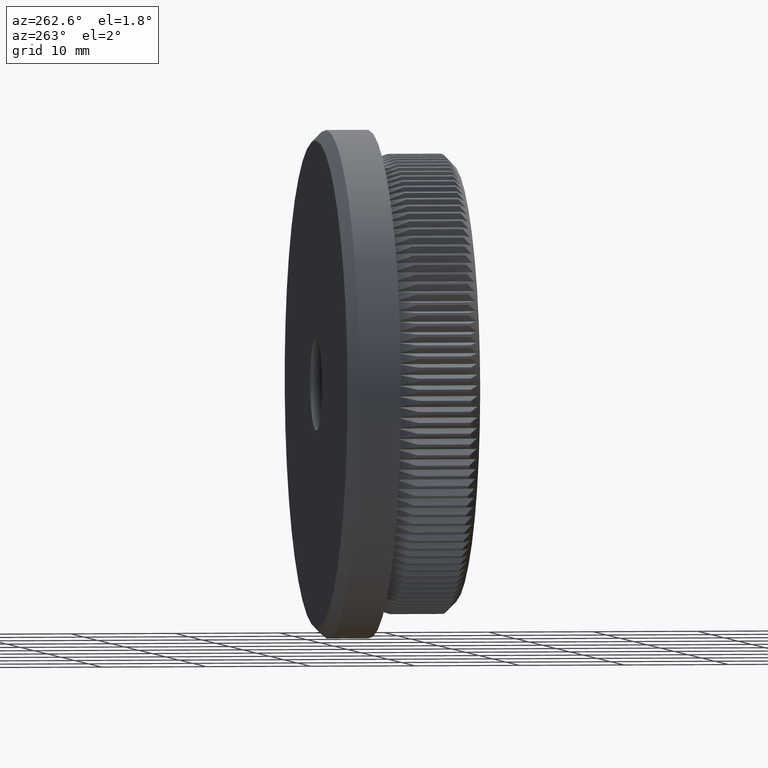
[diagram: clean part render]
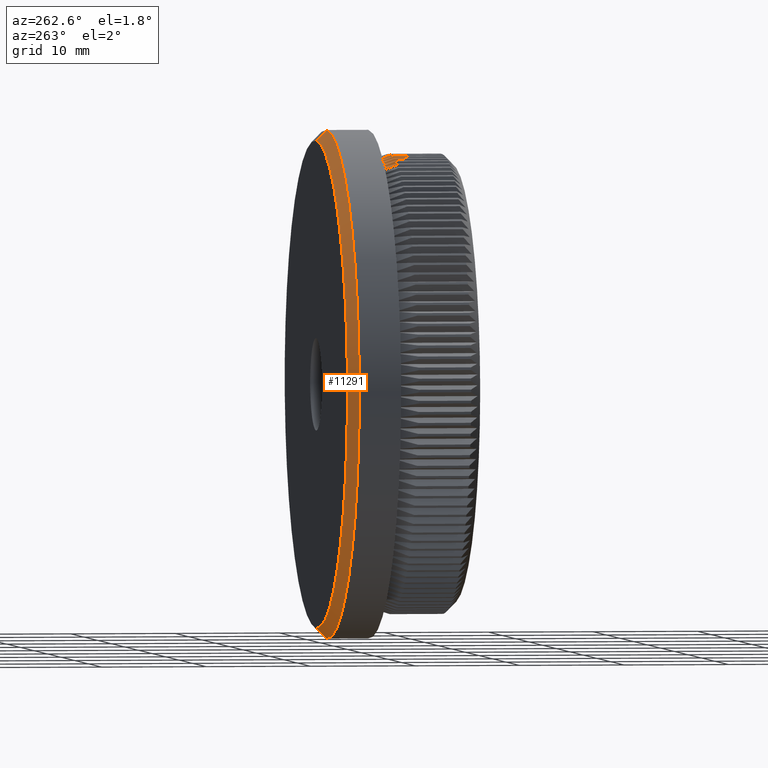
[diagram: same view with one face highlighted and labeled with its STEP entity id]
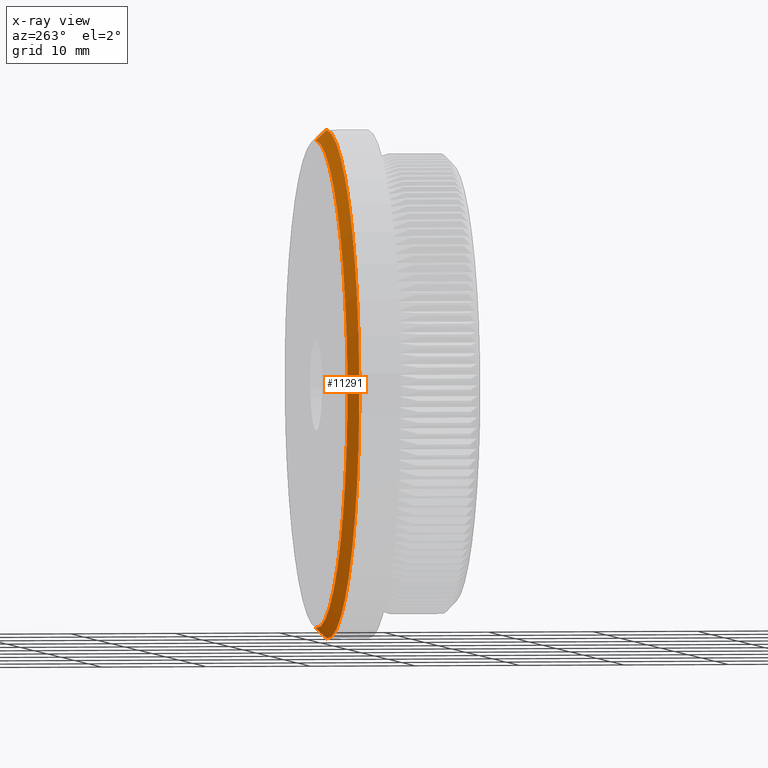
[diagram: x-ray of the same camera — body ghosted, the highlighted face saturated]
A machine part, auxiliary view. The second image highlights one B-rep face of the part: STEP entity #11291.
The next image is the same camera in x-ray: the body ghosted, the highlighted face saturated — about 0% of this face is hidden behind the body in this view.
In plain terms, the highlighted conical surface has half-angle 45 deg.
Its self-contained STEP definition (entity closure, byte-faithful):
#605 = DIRECTION ( 'NONE',  ( 8.659560562354918100E-017, -0.7071067811865487900, 0.7071067811865463500 ) ) ;
#607 = DIRECTION ( 'NONE',  ( 0.0000000000000000000, 0.0000000000000000000, -1.000000000000000000 ) ) ;
#868 = VECTOR ( 'NONE', #605, 1000.000000000000000 ) ;
#950 = CARTESIAN_POINT ( 'NONE',  ( 0.0000000000000000000, 13.00000000000000000, -23.14999999999999900 ) ) ;
#1469 = EDGE_CURVE ( 'NONE', #23190, #10717, #32015, .T. ) ;
#2762 = AXIS2_PLACEMENT_3D ( 'NONE', #25064, #27396, #607 ) ;
#4174 = VERTEX_POINT ( 'NONE', #950 ) ;
#4902 = FACE_OUTER_BOUND ( 'NONE', #22192, .T. ) ;
#5794 = CARTESIAN_POINT ( 'NONE',  ( 0.0000000000000000000, 11.99999999999999500, 0.0000000000000000000 ) ) ;
#6168 = CARTESIAN_POINT ( 'NONE',  ( 0.0000000000000000000, 13.00000000000000000, 0.0000000000000000000 ) ) ;
#7495 = CIRCLE ( 'NONE', #23687, 23.14999999999999900 ) ;
#8029 = CARTESIAN_POINT ( 'NONE',  ( 2.896289679983490000E-015, 13.00000000000000000, 23.14999999999999900 ) ) ;
#10515 = LINE ( 'NONE', #25158, #25915 ) ;
#10717 = VERTEX_POINT ( 'NONE', #21856 ) ;
#11291 = ADVANCED_FACE ( 'NONE', ( #4902 ), #26595, .T. ) ;
#12889 = ORIENTED_EDGE ( 'NONE', *, *, #27346, .F. ) ;
#13693 = DIRECTION ( 'NONE',  ( 0.0000000000000000000, 0.0000000000000000000, 1.000000000000000000 ) ) ;
#13967 = ORIENTED_EDGE ( 'NONE', *, *, #18347, .T. ) ;
#15416 = ORIENTED_EDGE ( 'NONE', *, *, #26519, .F. ) ;
#15697 = CARTESIAN_POINT ( 'NONE',  ( 2.957522019940857900E-015, 11.99999999999999500, 24.14999999999999900 ) ) ;
#16096 = DIRECTION ( 'NONE',  ( 0.0000000000000000000, 1.000000000000000000, 0.0000000000000000000 ) ) ;
#18347 = EDGE_CURVE ( 'NONE', #4174, #30371, #10515, .T. ) ;
#19788 = CIRCLE ( 'NONE', #20124, 24.14999999999999900 ) ;
#20124 = AXIS2_PLACEMENT_3D ( 'NONE', #5794, #26280, #13693 ) ;
#20260 = CARTESIAN_POINT ( 'NONE',  ( 0.0000000000000000000, 11.99999999999999500, -24.14999999999999900 ) ) ;
#21856 = CARTESIAN_POINT ( 'NONE',  ( 2.957522019940857900E-015, 11.99999999999999500, 24.14999999999999900 ) ) ;
#22192 = EDGE_LOOP ( 'NONE', ( #32189, #12889, #13967, #15416 ) ) ;
#23190 = VERTEX_POINT ( 'NONE', #8029 ) ;
#23687 = AXIS2_PLACEMENT_3D ( 'NONE', #6168, #16096, #31287 ) ;
#25064 = CARTESIAN_POINT ( 'NONE',  ( 0.0000000000000000000, 11.99999999999999500, 0.0000000000000000000 ) ) ;
#25158 = CARTESIAN_POINT ( 'NONE',  ( 0.0000000000000000000, 11.99999999999999500, -24.14999999999999900 ) ) ;
#25915 = VECTOR ( 'NONE', #27593, 1000.000000000000000 ) ;
#26280 = DIRECTION ( 'NONE',  ( -0.0000000000000000000, -1.000000000000000000, -0.0000000000000000000 ) ) ;
#26519 = EDGE_CURVE ( 'NONE', #10717, #30371, #19788, .T. ) ;
#26595 = CONICAL_SURFACE ( 'NONE', #2762, 24.14999999999999900, 0.7853981633974466100 ) ;
#27346 = EDGE_CURVE ( 'NONE', #4174, #23190, #7495, .T. ) ;
#27396 = DIRECTION ( 'NONE',  ( -0.0000000000000000000, -1.000000000000000000, -0.0000000000000000000 ) ) ;
#27593 = DIRECTION ( 'NONE',  ( 0.0000000000000000000, -0.7071067811865487900, -0.7071067811865463500 ) ) ;
#30371 = VERTEX_POINT ( 'NONE', #20260 ) ;
#31287 = DIRECTION ( 'NONE',  ( 0.0000000000000000000, 0.0000000000000000000, 1.000000000000000000 ) ) ;
#32015 = LINE ( 'NONE', #15697, #868 ) ;
#32189 = ORIENTED_EDGE ( 'NONE', *, *, #1469, .F. ) ;